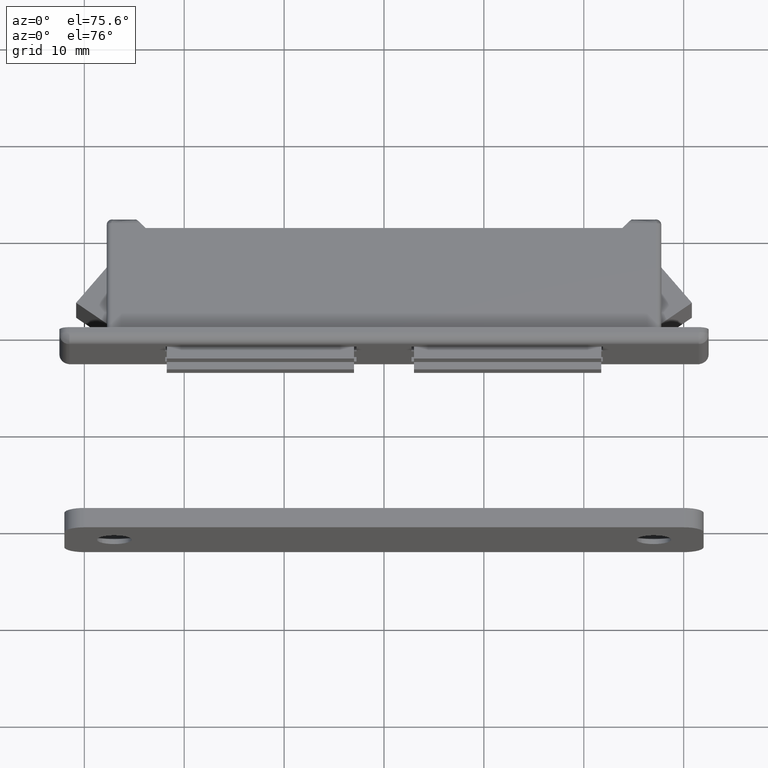
[diagram: clean part render]
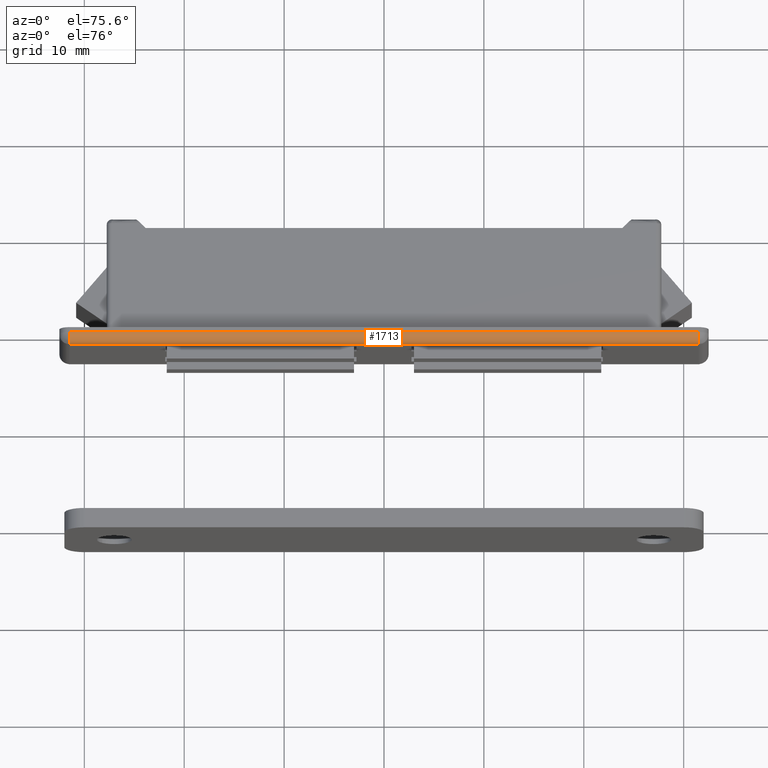
[diagram: same view with one face highlighted and labeled with its STEP entity id]
A machine part, auxiliary view. The second image highlights one B-rep face of the part: STEP entity #1713.
In plain terms, the highlighted face is a freeform B-spline surface patch.
Its self-contained STEP definition (entity closure, byte-faithful):
#1479=CARTESIAN_POINT('',(-31.500007000000000,-13.0,4.0));
#1480=VERTEX_POINT('',#1479);
#1599=CARTESIAN_POINT('',(-31.500007000000000,-12.0,5.0));
#1600=VERTEX_POINT('',#1599);
#1601=CARTESIAN_POINT('',(-31.500007000000000,-13.0,4.0));
#1602=CARTESIAN_POINT('',(-31.500007000000050,-13.000262705884230,4.155481388354551));
#1603=CARTESIAN_POINT('',(-31.500006999999950,-12.935757610004650,4.425230145564091));
#1604=CARTESIAN_POINT('',(-31.500007000000050,-12.718069536232450,4.718597142773886));
#1605=CARTESIAN_POINT('',(-31.500006999999680,-12.470479546858060,4.897559608712891));
#1606=CARTESIAN_POINT('',(-31.500007000001052,-12.229075425397991,4.983909694550851));
#1607=CARTESIAN_POINT('',(-31.500006999998860,-12.065444527198419,5.000002926847725));
#1608=CARTESIAN_POINT('',(-31.500007000000000,-12.0,5.0));
#1609=B_SPLINE_CURVE_WITH_KNOTS('',3,(#1601,#1602,#1603,#1604,#1605,#1606,#1607,#1608),.UNSPECIFIED.,.F.,.U.,(4,1,1,1,1,4),(0.000000166047261,0.466343057359248,0.809938192471853,1.079943354210886,1.374497211778036,1.570835744351540),.UNSPECIFIED.);
#1610=EDGE_CURVE('',#1480,#1600,#1609,.T.);
#1671=CARTESIAN_POINT('',(-33.075007279799649,-12.999657324975560,3.973823051692127));
#1672=CARTESIAN_POINT('',(33.114379478780847,-12.999657324975560,3.973823051692127));
#1673=CARTESIAN_POINT('',(-33.075007279799642,-13.028492260166260,5.074984800554719));
#1674=CARTESIAN_POINT('',(33.114379478780847,-13.028492260166260,5.074984800554719));
#1675=CARTESIAN_POINT('',(-33.075007279799657,-11.929679924374023,4.997524479380810));
#1676=CARTESIAN_POINT('',(33.114379478780855,-11.929679924374023,4.997524479380810));
#1684=(BOUNDED_SURFACE()B_SPLINE_SURFACE(1,2,((#1671,#1673,#1675),(#1672,#1674,#1676)),.UNSPECIFIED.,.F.,.F.,.U.)B_SPLINE_SURFACE_WITH_KNOTS((2,2),(3,3),(0.0,66.189386758580497),(0.0,0.994518632334191),.UNSPECIFIED.)GEOMETRIC_REPRESENTATION_ITEM()RATIONAL_B_SPLINE_SURFACE(((1.0,0.670944223154768,0.996392648609106),(1.0,0.670944223154768,0.996392648609106)))REPRESENTATION_ITEM('')SURFACE());
#1685=CARTESIAN_POINT('',(31.500004000000001,-13.0,4.0));
#1686=VERTEX_POINT('',#1685);
#1687=CARTESIAN_POINT('',(31.500004191986200,-12.0,5.0));
#1688=VERTEX_POINT('',#1687);
#1689=CARTESIAN_POINT('',(31.500004000000001,-13.0,4.0));
#1690=CARTESIAN_POINT('',(31.500004023561981,-13.000092053566901,4.122727265732462));
#1691=CARTESIAN_POINT('',(31.500004069102850,-12.955801897341409,4.359936635106394));
#1692=CARTESIAN_POINT('',(31.500004119681488,-12.797854284289720,4.623385531932644));
#1693=CARTESIAN_POINT('',(31.500004158869171,-12.583511156765271,4.827503116089371));
#1694=CARTESIAN_POINT('',(31.500004185159909,-12.327242886180411,4.964444456888790));
#1695=CARTESIAN_POINT('',(31.500004191996808,-12.106358273676509,5.000054478229090));
#1696=CARTESIAN_POINT('',(31.500004191986200,-12.0,5.0));
#1697=B_SPLINE_CURVE_WITH_KNOTS('',3,(#1689,#1690,#1691,#1692,#1693,#1694,#1695,#1696),.UNSPECIFIED.,.F.,.U.,(4,1,1,1,1,4),(0.000000166048820,0.368163278712591,0.711794077066171,0.908117916344807,1.251760846511691,1.570835744351566),.UNSPECIFIED.);
#1698=EDGE_CURVE('',#1686,#1688,#1697,.T.);
#1699=ORIENTED_EDGE('',*,*,#1698,.T.);
#1700=CARTESIAN_POINT('',(-31.500007000000000,-12.0,5.0));
#1701=CARTESIAN_POINT('',(31.500004191986200,-12.0,5.0));
#1702=QUASI_UNIFORM_CURVE('',1,(#1700,#1701),.UNSPECIFIED.,.F.,.U.);
#1703=EDGE_CURVE('',#1600,#1688,#1702,.T.);
#1704=ORIENTED_EDGE('',*,*,#1703,.F.);
#1705=ORIENTED_EDGE('',*,*,#1610,.F.);
#1706=CARTESIAN_POINT('',(31.500004000000001,-13.0,4.0));
#1707=CARTESIAN_POINT('',(-31.500007000000000,-13.0,4.0));
#1708=QUASI_UNIFORM_CURVE('',1,(#1706,#1707),.UNSPECIFIED.,.F.,.U.);
#1709=EDGE_CURVE('',#1686,#1480,#1708,.T.);
#1710=ORIENTED_EDGE('',*,*,#1709,.F.);
#1711=EDGE_LOOP('',(#1699,#1704,#1705,#1710));
#1712=FACE_OUTER_BOUND('',#1711,.T.);
#1713=ADVANCED_FACE('',(#1712),#1684,.T.);